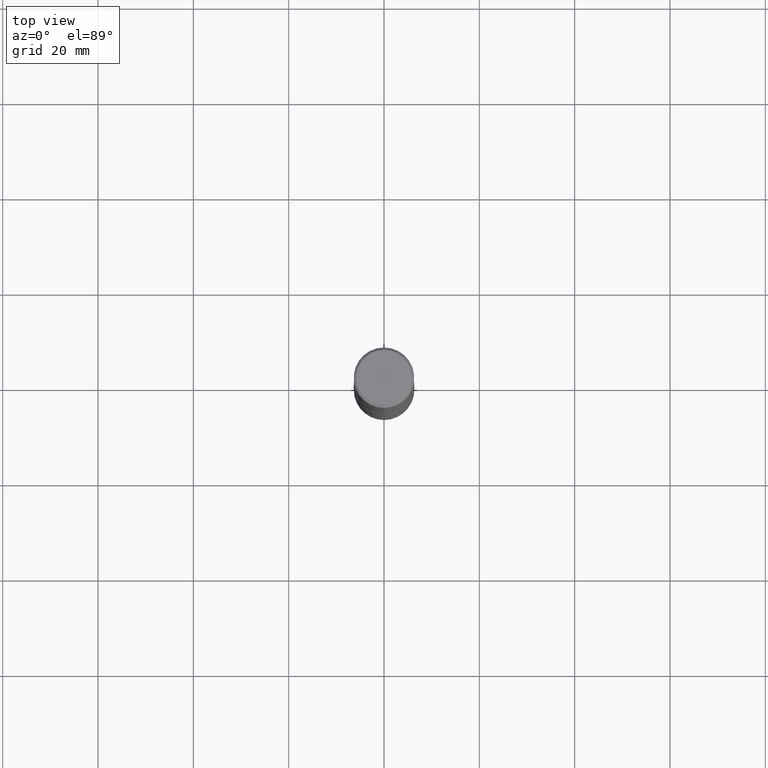
[diagram: clean part render]
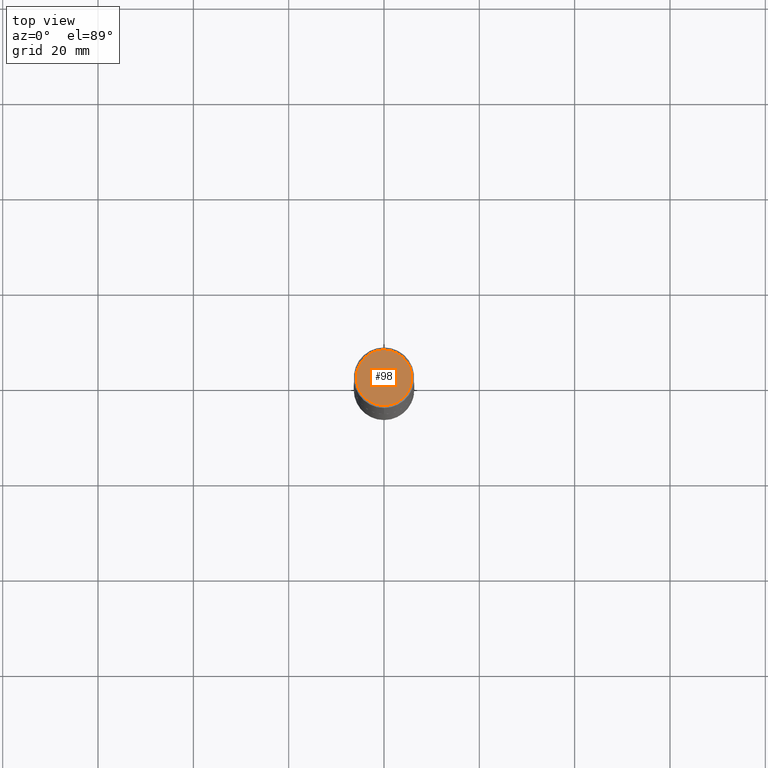
[diagram: same view with one face highlighted and labeled with its STEP entity id]
A machine part, top view. The second image highlights one B-rep face of the part: STEP entity #98.
In plain terms, the highlighted planar face has unit normal (0, -0, -1).
Its self-contained STEP definition (entity closure, byte-faithful):
#6 = EDGE_CURVE ( 'NONE', #170, #88, #410, .T. ) ;
#23 = CIRCLE ( 'NONE', #319, 0.2300000000000007871 ) ;
#30 = DIRECTION ( 'NONE',  ( 2.445357092195460350E-29, -3.491641319634726865E-15, -1.000000000000000000 ) ) ;
#38 = EDGE_CURVE ( 'NONE', #88, #170, #23, .T. ) ;
#61 = DIRECTION ( 'NONE',  ( -6.982962677686265922E-15, -1.000000000000000000, 3.491641319634726865E-15 ) ) ;
#85 = AXIS2_PLACEMENT_3D ( 'NONE', #130, #188, #278 ) ;
#88 = VERTEX_POINT ( 'NONE', #89 ) ;
#89 = CARTESIAN_POINT ( 'NONE',  ( -1.646519519465169926E-15, -0.2300000000000007871, 1.770800091957787978E-17 ) ) ;
#98 = ADVANCED_FACE ( 'NONE', ( #407 ), #123, .F. ) ;
#123 = PLANE ( 'NONE',  #145 ) ;
#130 = CARTESIAN_POINT ( 'NONE',  ( 1.920508883168157338E-44, -2.742228606446605218E-30, -7.853695025964119872E-16 ) ) ;
#145 = AXIS2_PLACEMENT_3D ( 'NONE', #191, #30, #275 ) ;
#148 = EDGE_LOOP ( 'NONE', ( #355, #343 ) ) ;
#170 = VERTEX_POINT ( 'NONE', #333 ) ;
#188 = DIRECTION ( 'NONE',  ( -2.445357092195460631E-29, 3.491641319634726865E-15, 1.000000000000000000 ) ) ;
#191 = CARTESIAN_POINT ( 'NONE',  ( 1.606081415867846589E-15, 0.2300000000000007871, -1.195762254814195959E-15 ) ) ;
#275 = DIRECTION ( 'NONE',  ( 6.982962677686265922E-15, 1.000000000000000000, -3.491641319634726865E-15 ) ) ;
#278 = DIRECTION ( 'NONE',  ( -6.982962677686265922E-15, -1.000000000000000000, 3.491641319634726865E-15 ) ) ;
#319 = AXIS2_PLACEMENT_3D ( 'NONE', #345, #376, #61 ) ;
#333 = CARTESIAN_POINT ( 'NONE',  ( 1.675911042644706732E-15, 0.2300000000000007871, -1.588447006112402101E-15 ) ) ;
#343 = ORIENTED_EDGE ( 'NONE', *, *, #38, .T. ) ;
#345 = CARTESIAN_POINT ( 'NONE',  ( 1.920508883168157338E-44, -2.742228606446605218E-30, -7.853695025964119872E-16 ) ) ;
#355 = ORIENTED_EDGE ( 'NONE', *, *, #6, .T. ) ;
#376 = DIRECTION ( 'NONE',  ( -2.445357092195460631E-29, 3.491641319634726865E-15, 1.000000000000000000 ) ) ;
#407 = FACE_OUTER_BOUND ( 'NONE', #148, .T. ) ;
#410 = CIRCLE ( 'NONE', #85, 0.2300000000000007871 ) ;